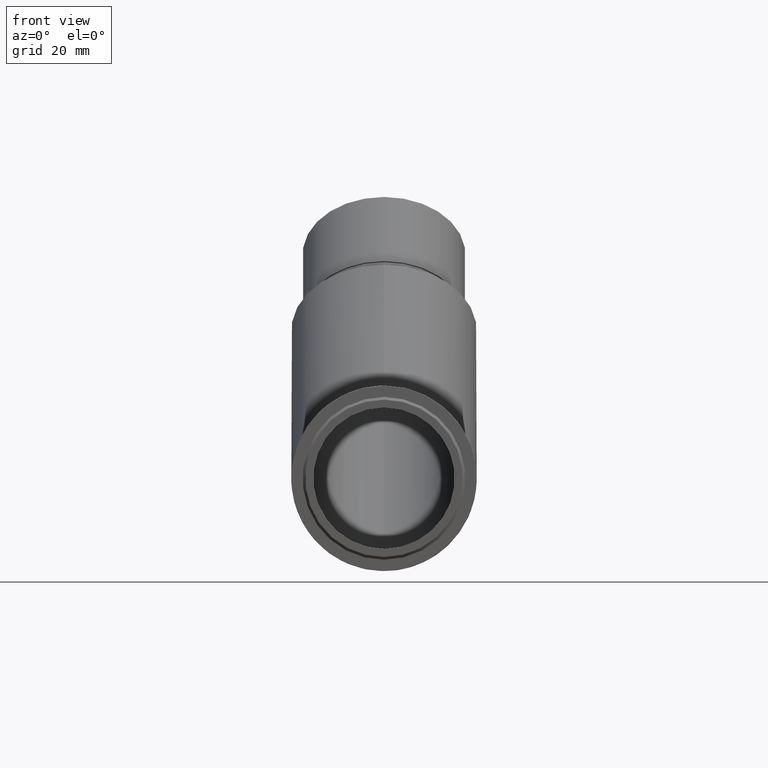
[diagram: clean part render]
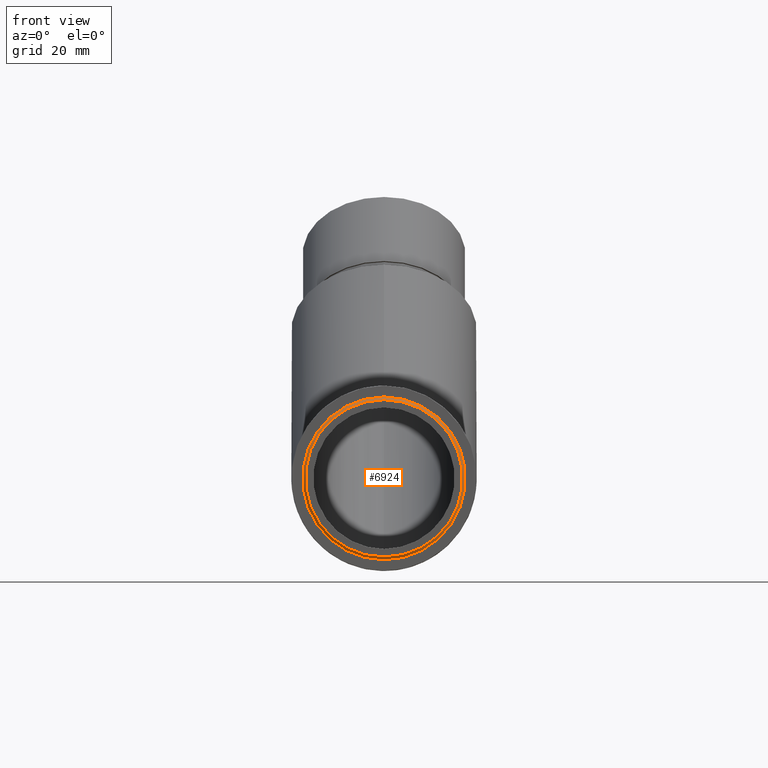
[diagram: same view with one face highlighted and labeled with its STEP entity id]
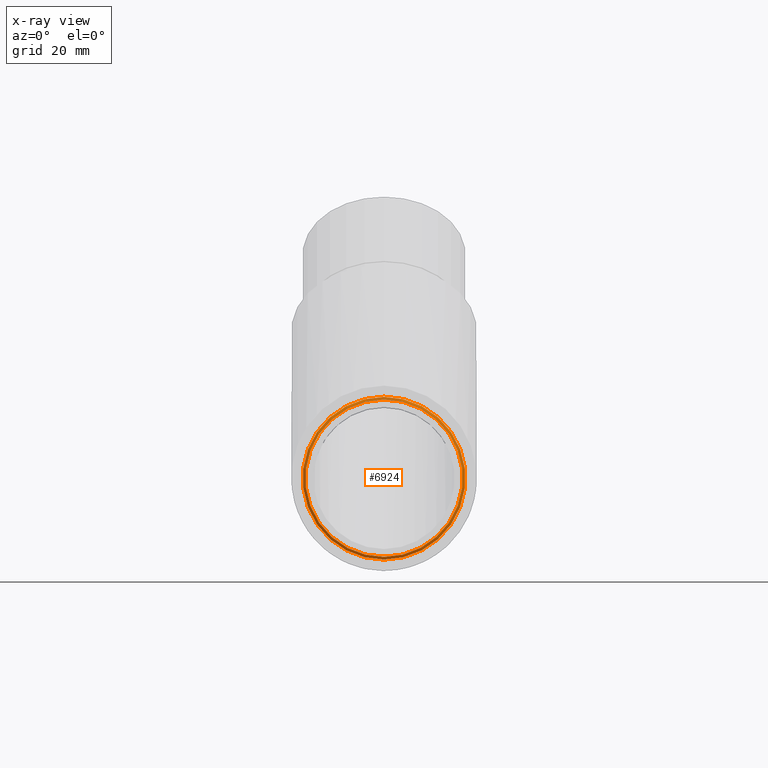
[diagram: x-ray of the same camera — body ghosted, the highlighted face saturated]
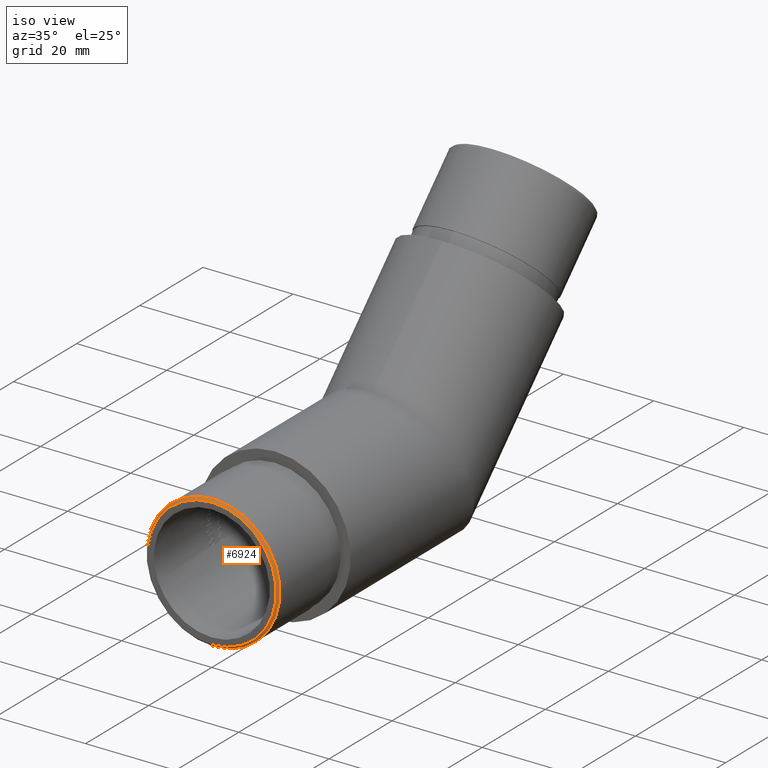
[diagram: same view with one face highlighted and labeled with its STEP entity id]
A machine part, front view. The second image highlights one B-rep face of the part: STEP entity #6924.
The next image is the same camera in x-ray: the body ghosted, the highlighted face saturated — about 0% of this face is hidden behind the body in this view.
A second angle (iso view) of the same face is appended — the face is thin or edge-on in the first view.
In plain terms, the highlighted conical surface has half-angle 45 deg.
Its self-contained STEP definition (entity closure, byte-faithful):
#51 = CARTESIAN_POINT ( 'NONE',  ( 0.0000000000000000000, -20.00000000000000000, -14.29999999999999400 ) ) ;
#101 = VERTEX_POINT ( 'NONE', #51 ) ;
#336 = CONICAL_SURFACE ( 'NONE', #690, 14.29999999999999400, 0.7853981633974396200 ) ;
#407 = ORIENTED_EDGE ( 'NONE', *, *, #9546, .F. ) ;
#578 = CIRCLE ( 'NONE', #6054, 14.79999999999999900 ) ;
#690 = AXIS2_PLACEMENT_3D ( 'NONE', #9762, #10641, #933 ) ;
#933 = DIRECTION ( 'NONE',  ( 0.0000000000000000000, 0.0000000000000000000, 1.000000000000000000 ) ) ;
#2325 = VERTEX_POINT ( 'NONE', #9740 ) ;
#2765 = DIRECTION ( 'NONE',  ( 0.0000000000000000000, -1.000000000000000000, 0.0000000000000000000 ) ) ;
#3298 = DIRECTION ( 'NONE',  ( 0.0000000000000000000, 1.000000000000000000, 0.0000000000000000000 ) ) ;
#3671 = FACE_OUTER_BOUND ( 'NONE', #5309, .T. ) ;
#4138 = CARTESIAN_POINT ( 'NONE',  ( 0.0000000000000000000, -19.49999999999998600, 0.0000000000000000000 ) ) ;
#4570 = DIRECTION ( 'NONE',  ( 0.0000000000000000000, 0.0000000000000000000, -1.000000000000000000 ) ) ;
#5309 = EDGE_LOOP ( 'NONE', ( #407 ) ) ;
#5468 = CIRCLE ( 'NONE', #5902, 14.29999999999999400 ) ;
#5592 = FACE_BOUND ( 'NONE', #11322, .T. ) ;
#5902 = AXIS2_PLACEMENT_3D ( 'NONE', #8960, #2765, #4570 ) ;
#6054 = AXIS2_PLACEMENT_3D ( 'NONE', #4138, #3298, #11274 ) ;
#6306 = ORIENTED_EDGE ( 'NONE', *, *, #10343, .F. ) ;
#6924 = ADVANCED_FACE ( 'NONE', ( #3671, #5592 ), #336, .T. ) ;
#8960 = CARTESIAN_POINT ( 'NONE',  ( 0.0000000000000000000, -20.00000000000000000, 0.0000000000000000000 ) ) ;
#9546 = EDGE_CURVE ( 'NONE', #2325, #2325, #578, .T. ) ;
#9740 = CARTESIAN_POINT ( 'NONE',  ( 0.0000000000000000000, -19.49999999999998600, -14.79999999999999900 ) ) ;
#9762 = CARTESIAN_POINT ( 'NONE',  ( 0.0000000000000000000, -20.00000000000000000, 0.0000000000000000000 ) ) ;
#10343 = EDGE_CURVE ( 'NONE', #101, #101, #5468, .T. ) ;
#10641 = DIRECTION ( 'NONE',  ( 0.0000000000000000000, 1.000000000000000000, 0.0000000000000000000 ) ) ;
#11274 = DIRECTION ( 'NONE',  ( 0.0000000000000000000, 0.0000000000000000000, -1.000000000000000000 ) ) ;
#11322 = EDGE_LOOP ( 'NONE', ( #6306 ) ) ;